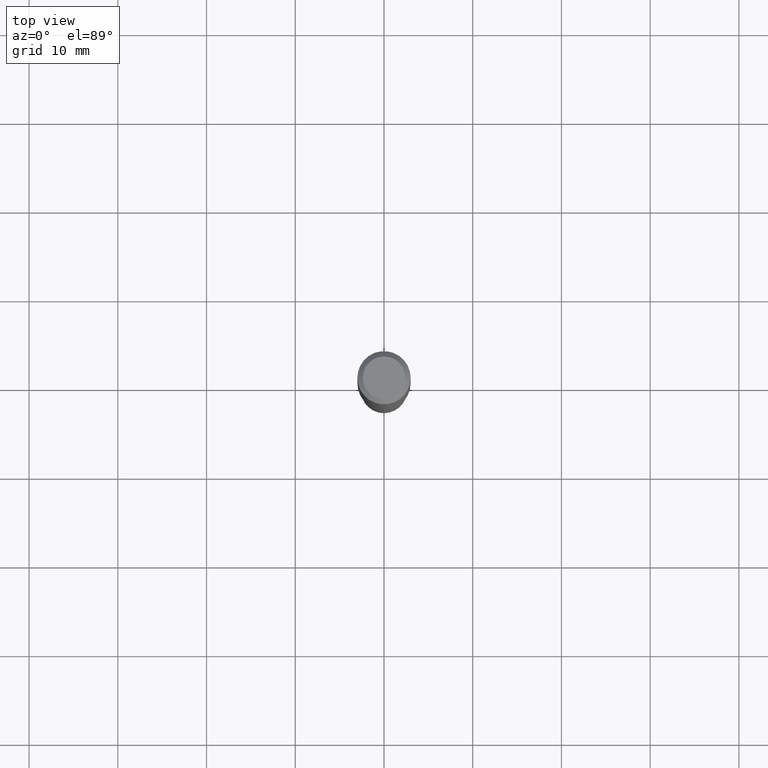
[diagram: clean part render]
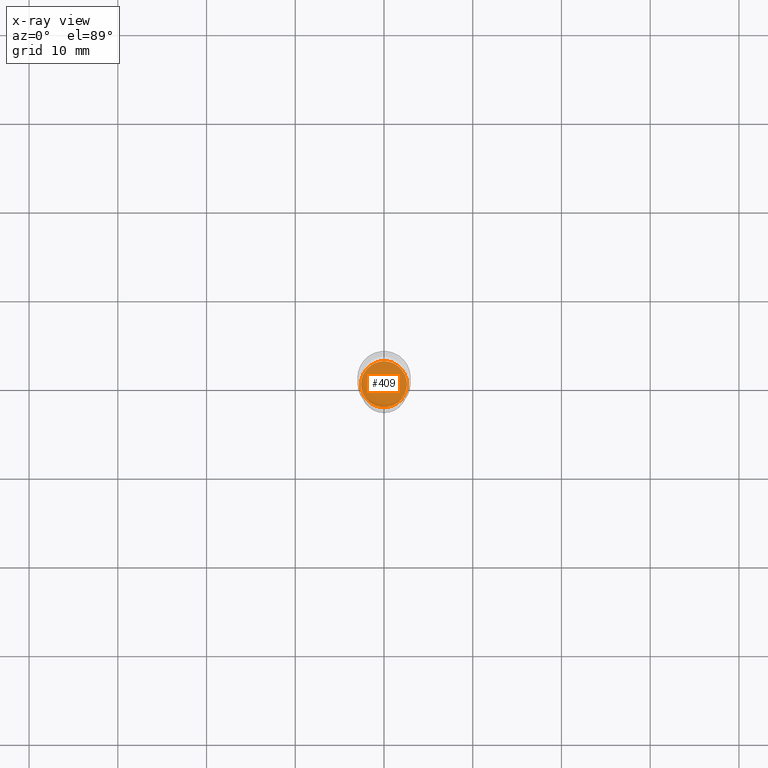
[diagram: x-ray — body ghosted, one internal face saturated and labeled with its STEP entity id]
A machine part, top view, then the same camera in x-ray: the body is ghosted and one INTERNAL B-rep face — a face not visible from any outside direction — is saturated and labeled: STEP entity #409.
In plain terms, the highlighted planar face has unit normal (-0, 0, 1).
Its self-contained STEP definition (entity closure, byte-faithful):
#2 = VERTEX_POINT ( 'NONE', #459 ) ;
#3 = PLANE ( 'NONE',  #233 ) ;
#12 = EDGE_CURVE ( 'NONE', #112, #2, #180, .T. ) ;
#46 = DIRECTION ( 'NONE',  ( -2.445468806185136597E-29, 3.491481338843145583E-15, 1.000000000000000000 ) ) ;
#76 = ORIENTED_EDGE ( 'NONE', *, *, #12, .F. ) ;
#96 = DIRECTION ( 'NONE',  ( 1.000000000000000000, -6.982962677686265922E-15, 4.876176775795935793E-29 ) ) ;
#98 = DIRECTION ( 'NONE',  ( -2.438088387897960049E-29, 3.491481338843145188E-15, 1.000000000000000000 ) ) ;
#112 = VERTEX_POINT ( 'NONE', #166 ) ;
#146 = EDGE_CURVE ( 'NONE', #2, #112, #425, .T. ) ;
#157 = EDGE_LOOP ( 'NONE', ( #269, #76 ) ) ;
#166 = CARTESIAN_POINT ( 'NONE',  ( -0.1018499999999999961, -5.211625309424764107E-15, -1.700699999999999878 ) ) ;
#172 = AXIS2_PLACEMENT_3D ( 'NONE', #218, #241, #414 ) ;
#180 = CIRCLE ( 'NONE', #172, 0.1018499999999999961 ) ;
#202 = CARTESIAN_POINT ( 'NONE',  ( 4.159008798679061688E-29, -5.937962312970537319E-15, -1.700699999999999878 ) ) ;
#218 = CARTESIAN_POINT ( 'NONE',  ( 4.159008798679061688E-29, -5.937962312970537319E-15, -1.700699999999999878 ) ) ;
#233 = AXIS2_PLACEMENT_3D ( 'NONE', #321, #98, #96 ) ;
#241 = DIRECTION ( 'NONE',  ( -2.445468806185136597E-29, 3.491481338843145583E-15, 1.000000000000000000 ) ) ;
#263 = AXIS2_PLACEMENT_3D ( 'NONE', #202, #46, #421 ) ;
#269 = ORIENTED_EDGE ( 'NONE', *, *, #146, .F. ) ;
#321 = CARTESIAN_POINT ( 'NONE',  ( 4.159008798679061688E-29, -5.937962312970537319E-15, -1.700699999999999878 ) ) ;
#352 = FACE_OUTER_BOUND ( 'NONE', #157, .T. ) ;
#409 = ADVANCED_FACE ( 'NONE', ( #352 ), #3, .F. ) ;
#414 = DIRECTION ( 'NONE',  ( 1.000000000000000000, -6.982962677686265922E-15, 0.000000000000000000 ) ) ;
#421 = DIRECTION ( 'NONE',  ( 1.000000000000000000, -6.982962677686265922E-15, 0.000000000000000000 ) ) ;
#425 = CIRCLE ( 'NONE', #263, 0.1018499999999999961 ) ;
#459 = CARTESIAN_POINT ( 'NONE',  ( 0.1018499999999999961, -6.649177061692883906E-15, -1.700699999999999878 ) ) ;